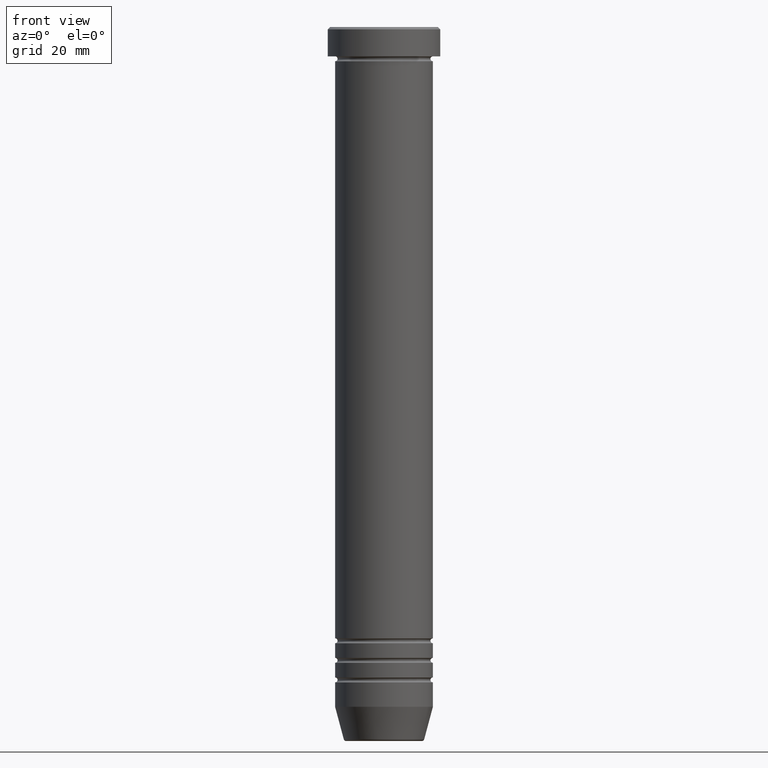
[diagram: clean part render]
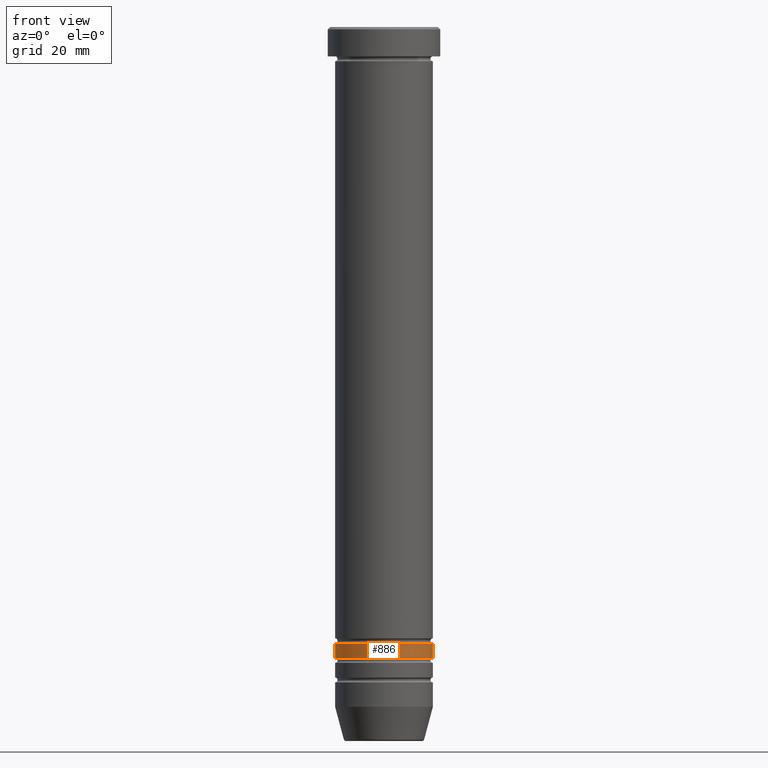
[diagram: same view with one face highlighted and labeled with its STEP entity id]
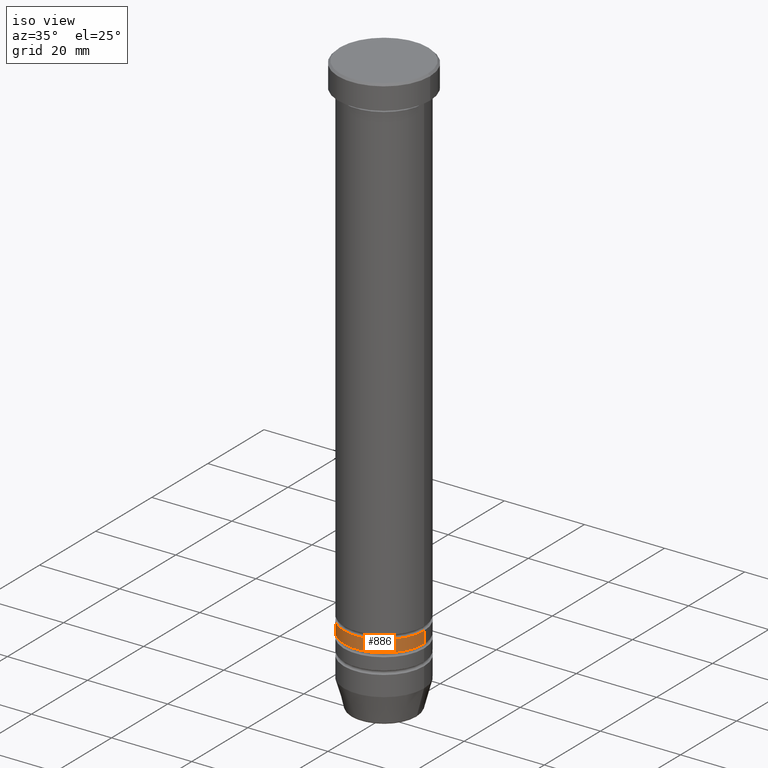
[diagram: same view with one face highlighted and labeled with its STEP entity id]
A machine part, front view. The second image highlights one B-rep face of the part: STEP entity #886.
A second angle (iso view) of the same face is appended — the face is thin or edge-on in the first view.
In plain terms, the highlighted cylindrical surface (partial cylindrical patch) has radius 10 mm, axis along (-0, -0, 1).
Its self-contained STEP definition (entity closure, byte-faithful):
#41 = ORIENTED_EDGE ( 'NONE', *, *, #387, .T. ) ;
#46 = DIRECTION ( 'NONE',  ( 1.000000000000000000, 0.000000000000000000, 0.000000000000000000 ) ) ;
#131 = CARTESIAN_POINT ( 'NONE',  ( 0.000000000000000000, 0.000000000000000000, -129.0000000000000284 ) ) ;
#216 = ORIENTED_EDGE ( 'NONE', *, *, #663, .F. ) ;
#238 = ORIENTED_EDGE ( 'NONE', *, *, #324, .F. ) ;
#276 = DIRECTION ( 'NONE',  ( -0.000000000000000000, -0.000000000000000000, 1.000000000000000000 ) ) ;
#298 = VECTOR ( 'NONE', #1016, 1000.000000000000000 ) ;
#299 = LINE ( 'NONE', #490, #298 ) ;
#300 = AXIS2_PLACEMENT_3D ( 'NONE', #731, #276, #990 ) ;
#322 = VERTEX_POINT ( 'NONE', #657 ) ;
#324 = EDGE_CURVE ( 'NONE', #322, #842, #299, .T. ) ;
#387 = EDGE_CURVE ( 'NONE', #973, #613, #405, .T. ) ;
#405 = LINE ( 'NONE', #1041, #833 ) ;
#445 = DIRECTION ( 'NONE',  ( -0.000000000000000000, -0.000000000000000000, 1.000000000000000000 ) ) ;
#465 = AXIS2_PLACEMENT_3D ( 'NONE', #131, #479, #46 ) ;
#479 = DIRECTION ( 'NONE',  ( -0.000000000000000000, -0.000000000000000000, 1.000000000000000000 ) ) ;
#490 = CARTESIAN_POINT ( 'NONE',  ( -9.999999999999998224, 1.224646799147353059E-15, 0.000000000000000000 ) ) ;
#492 = CARTESIAN_POINT ( 'NONE',  ( 0.000000000000000000, 0.000000000000000000, 0.000000000000000000 ) ) ;
#590 = CARTESIAN_POINT ( 'NONE',  ( -10.00000000000000000, 1.224646799147353256E-15, -126.0000000000000284 ) ) ;
#593 = CYLINDRICAL_SURFACE ( 'NONE', #664, 9.999999999999998224 ) ;
#609 = ORIENTED_EDGE ( 'NONE', *, *, #794, .T. ) ;
#613 = VERTEX_POINT ( 'NONE', #1063 ) ;
#620 = EDGE_LOOP ( 'NONE', ( #238, #609, #41, #216 ) ) ;
#657 = CARTESIAN_POINT ( 'NONE',  ( -9.999999999999998224, 1.224646799147353059E-15, -129.0000000000000284 ) ) ;
#663 = EDGE_CURVE ( 'NONE', #842, #613, #812, .T. ) ;
#664 = AXIS2_PLACEMENT_3D ( 'NONE', #492, #445, #904 ) ;
#731 = CARTESIAN_POINT ( 'NONE',  ( 0.000000000000000000, 0.000000000000000000, -126.0000000000000284 ) ) ;
#794 = EDGE_CURVE ( 'NONE', #322, #973, #854, .T. ) ;
#812 = CIRCLE ( 'NONE', #300, 10.00000000000000000 ) ;
#814 = FACE_OUTER_BOUND ( 'NONE', #620, .T. ) ;
#833 = VECTOR ( 'NONE', #954, 1000.000000000000000 ) ;
#842 = VERTEX_POINT ( 'NONE', #590 ) ;
#843 = CARTESIAN_POINT ( 'NONE',  ( 9.999999999999998224, 0.000000000000000000, -129.0000000000000284 ) ) ;
#854 = CIRCLE ( 'NONE', #465, 9.999999999999998224 ) ;
#886 = ADVANCED_FACE ( 'NONE', ( #814 ), #593, .T. ) ;
#904 = DIRECTION ( 'NONE',  ( 1.000000000000000000, 0.000000000000000000, 0.000000000000000000 ) ) ;
#954 = DIRECTION ( 'NONE',  ( -0.000000000000000000, -0.000000000000000000, 1.000000000000000000 ) ) ;
#973 = VERTEX_POINT ( 'NONE', #843 ) ;
#990 = DIRECTION ( 'NONE',  ( 1.000000000000000000, 0.000000000000000000, 0.000000000000000000 ) ) ;
#1016 = DIRECTION ( 'NONE',  ( -0.000000000000000000, -0.000000000000000000, 1.000000000000000000 ) ) ;
#1041 = CARTESIAN_POINT ( 'NONE',  ( 9.999999999999998224, 0.000000000000000000, 0.000000000000000000 ) ) ;
#1063 = CARTESIAN_POINT ( 'NONE',  ( 10.00000000000000000, 0.000000000000000000, -126.0000000000000284 ) ) ;